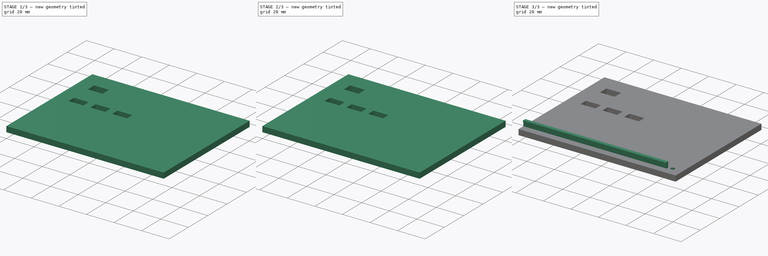
[diagram: build sequence overview — one tinted view per stage of 3, left to right]
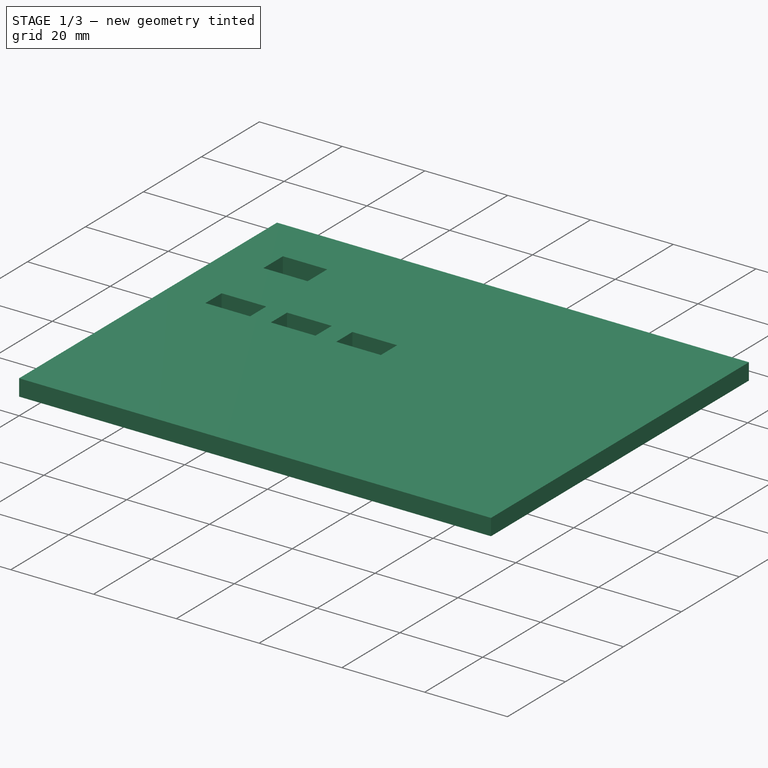
[diagram: stage 1 of 3 — iso view after this stage's code; geometry added in this stage tinted green]
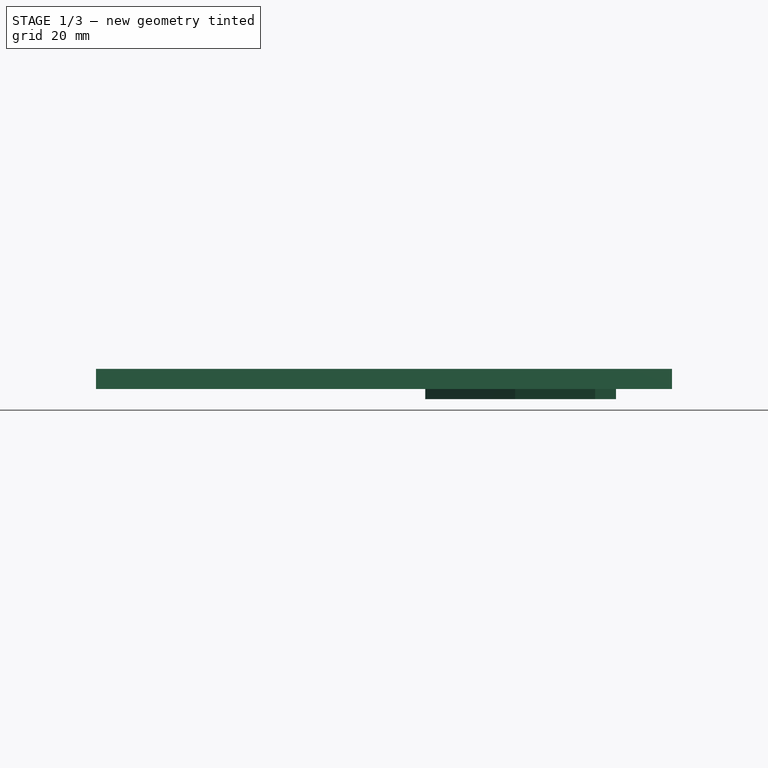
[diagram: stage 1 of 3 — front view after this stage's code; geometry added in this stage tinted green]
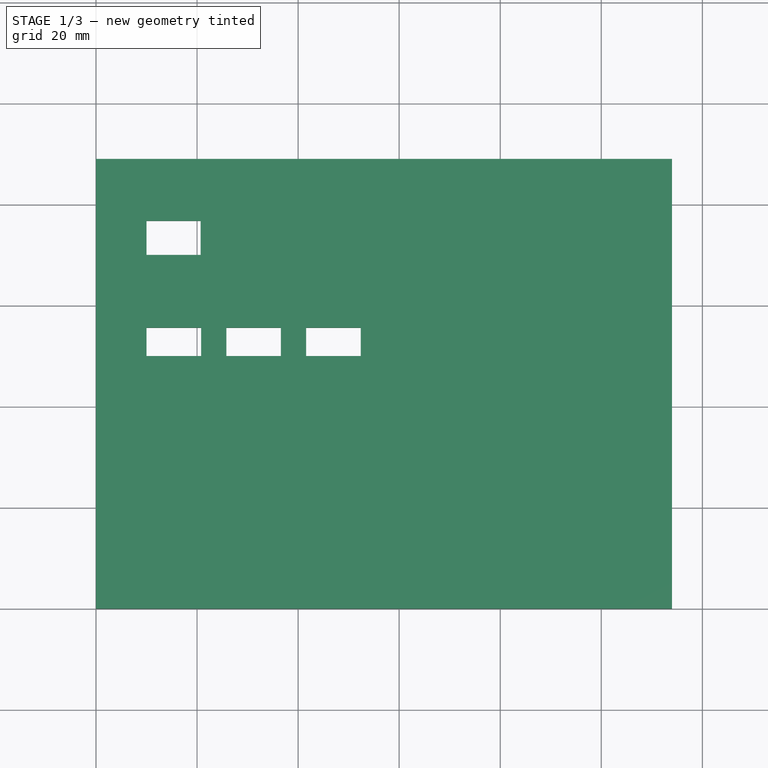
[diagram: stage 1 of 3 — top view after this stage's code; geometry added in this stage tinted green]
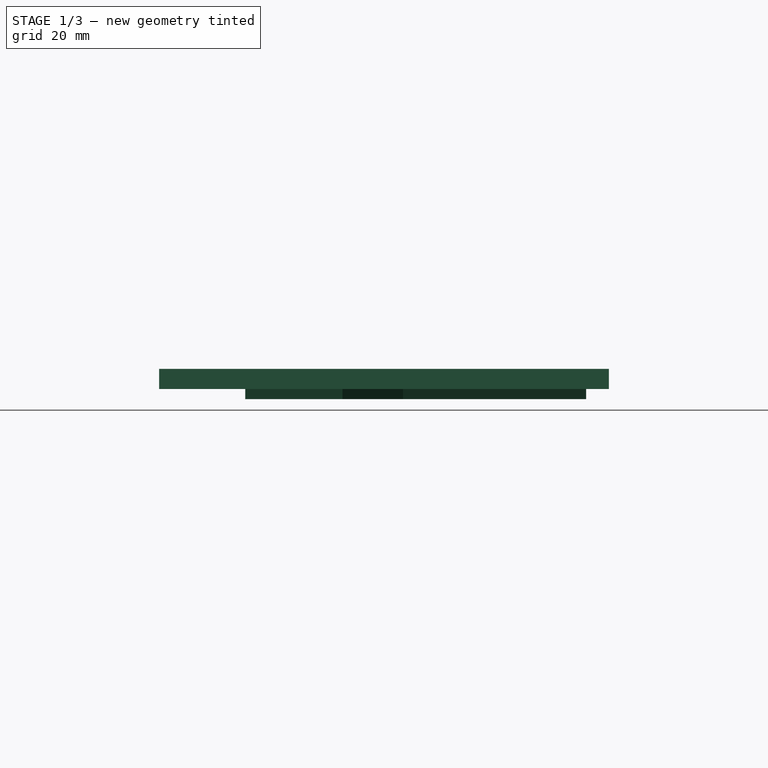
[diagram: stage 1 of 3 — right view after this stage's code; geometry added in this stage tinted green]
FCSTD DOCUMENT  (FreeCAD 1.0R38641 +468 (Git))
Label: Power-Box-Front
License: All rights reserved
LicenseURL: https://en.wikipedia.org/wiki/All_rights_reserved
objects: Sketcher::SketchObject×4, PartDesign::Pad×3, PartDesign::Fillet×1, PartDesign::Pocket×1, PartDesign::Body×1
note: 24 computed .brp shape members not serialized (recipe doc carries the construction recipe); baked Part::Feature solids carry a one-line shape summary decoded from their .brp

FEATURE [Sketcher::SketchObject] Sketch158  label="front-panel"
  ArcFitTolerance = 1e-06
  AttachmentSupport = -> [XY_Plane018]
  FullyConstrained = true
  MakeInternals = false
  MapMode = 5
  sketch-geometry (20):
    g0: LineSegment StartX=0 StartY=89 StartZ=0 EndX=0 EndY=0 EndZ=0
    g1: LineSegment StartX=0 StartY=0 StartZ=0 EndX=114 EndY=0 EndZ=0
    g2: LineSegment StartX=114 StartY=0 StartZ=0 EndX=114 EndY=89 EndZ=0
    g3: LineSegment StartX=114 StartY=89 StartZ=0 EndX=0 EndY=89 EndZ=0
    g4: LineSegment StartX=25.8 StartY=55.6 StartZ=0 EndX=25.8 EndY=50 EndZ=0
    g5: LineSegment StartX=25.8 StartY=50 StartZ=0 EndX=36.6 EndY=50 EndZ=0
    g6: LineSegment StartX=36.6 StartY=50 StartZ=0 EndX=36.6 EndY=55.6 EndZ=0
    g7: LineSegment StartX=36.6 StartY=55.6 StartZ=0 EndX=25.8 EndY=55.6 EndZ=0
    g8: LineSegment StartX=41.6 StartY=55.6 StartZ=0 EndX=41.6 EndY=50 EndZ=0
    g9: LineSegment StartX=41.6 StartY=50 StartZ=0 EndX=52.4 EndY=50 EndZ=0
    g10: LineSegment StartX=52.4 StartY=50 StartZ=0 EndX=52.4 EndY=55.6 EndZ=0
    g11: LineSegment StartX=52.4 StartY=55.6 StartZ=0 EndX=41.6 EndY=55.6 EndZ=0
    g12: LineSegment StartX=10 StartY=55.6 StartZ=0 EndX=10 EndY=50 EndZ=0
    g13: LineSegment StartX=10 StartY=50 StartZ=0 EndX=20.8 EndY=50 EndZ=0
    g14: LineSegment StartX=20.8 StartY=50 StartZ=0 EndX=20.8 EndY=55.6 EndZ=0
    g15: LineSegment StartX=20.8 StartY=55.6 StartZ=0 EndX=10 EndY=55.6 EndZ=0
    g16: LineSegment StartX=10 StartY=76.75 StartZ=0 EndX=10 EndY=70 EndZ=0
    g17: LineSegment StartX=10 StartY=70 StartZ=0 EndX=20.7 EndY=70 EndZ=0
    g18: LineSegment StartX=20.7 StartY=70 StartZ=0 EndX=20.7 EndY=76.75 EndZ=0
    g19: LineSegment StartX=20.7 StartY=76.75 StartZ=0 EndX=10 EndY=76.75 EndZ=0
  constraints (60):
    c: Coincident(g0,g1)
    c: Coincident(g1,g2)
    c: Coincident(g2,g3)
    c: Coincident(g3,g0)
    c: Vertical(g0)
    c: Vertical(g2)
    c: Horizontal(g1)
    c: Horizontal(g3)
    c: Distance(g0,g2) = 114
    c: Distance(g1,g3) = 89
    c: DistanceY(g-1,g0) = 0
    c: DistanceX(g-1,g0) = 0
    c: Coincident(g4,g5)
    c: Coincident(g5,g6)
    c: Coincident(g6,g7)
    c: Coincident(g7,g4)
    c: Vertical(g4)
    c: Vertical(g6)
    c: Horizontal(g5)
    c: Horizontal(g7)
    c: Distance(g4,g6) = 10.8
    c: Distance(g5,g7) = 5.6
    c: Coincident(g8,g9)
    c: Coincident(g9,g10)
    c: Coincident(g10,g11)
    c: Coincident(g11,g8)
    c: Vertical(g8)
    c: Vertical(g10)
    c: Horizontal(g9)
    c: Horizontal(g11)
    c: Distance(g8,g10) = 10.8
    c: Distance(g9,g11) = 5.6
    c: Coincident(g12,g13)
    c: Coincident(g13,g14)
    c: Coincident(g14,g15)
    c: Coincident(g15,g12)
    c: Vertical(g12)
    c: Vertical(g14)
    c: Horizontal(g13)
    c: Horizontal(g15)
    c: Distance(g12,g14) = 10.8
    c: Distance(g13,g15) = 5.6
    c: DistanceX(g0,g12) = 10
    c: DistanceX(g14,g4) = 5
    c: DistanceX(g6,g8) = 5
    c: DistanceY(g0,g12) = 50
    c: DistanceY(g13,g4) = 0
    c: DistanceY(g5,g8) = 0
    c: Coincident(g16,g17)
    c: Coincident(g17,g18)
    c: Coincident(g18,g19)
    c: Coincident(g19,g16)
    c: Vertical(g16)
    c: Vertical(g18)
    c: Horizontal(g17)
    c: Horizontal(g19)
    c: Distance(g16,g18) = 10.7
    c: Distance(g17,g19) = 6.75
    c: DistanceY(g0,g16) = 70
    c: DistanceX(g0,g16) = 10
FEATURE [Sketcher::SketchObject] Sketch159  label="front-sign"
  ArcFitTolerance = 1e-06
  FullyConstrained = false
  MakeInternals = false
  MapMode = 5
  Placement = pos=(0,0,0) rot=(1,0,0;3.14159rad)
  sketch-geometry (11):
    g0: LineSegment StartX=70.9991 StartY=-84.5074 StartZ=0 EndX=85.9991 EndY=-84.5074 EndZ=0
    g1: LineSegment StartX=85.9991 StartY=-84.5074 StartZ=0 EndX=102.904 EndY=-48.2551 EndZ=0
    g2: LineSegment StartX=70.9991 StartY=-84.5074 StartZ=0 EndX=92.2214 EndY=-54.1988 EndZ=0
    g3: LineSegment StartX=102.904 StartY=-48.2551 StartZ=0 EndX=76.8239 EndY=-55.2432 EndZ=0
    g4: LineSegment StartX=76.8239 StartY=-55.2432 StartZ=0 EndX=91.2449 EndY=-31.2425 EndZ=0
    g5: LineSegment StartX=91.2449 StartY=-31.2425 StartZ=0 EndX=92.4737 EndY=-36.2803 EndZ=0
    g6: LineSegment StartX=92.4737 StartY=-36.2803 StartZ=0 EndX=98.7881 EndY=-17.0509 EndZ=0
    g7: LineSegment StartX=98.7881 StartY=-17.0509 StartZ=0 EndX=82.9604 EndY=-29.5321 EndZ=0
    g8: LineSegment StartX=82.9604 StartY=-29.5321 StartZ=0 EndX=88.6869 EndY=-29.085 EndZ=0
    g9: LineSegment StartX=92.2214 StartY=-54.1988 StartZ=0 EndX=65.1755 EndY=-61.4457 EndZ=0
    g10: LineSegment StartX=65.1755 StartY=-61.4457 StartZ=0 EndX=88.6869 EndY=-29.085 EndZ=0
  constraints (12):
    c: Horizontal(g0)
    c: Coincident(g1,g0)
    c: Coincident(g2,g0)
    c: Coincident(g9,g2)
    c: Coincident(g4,g3)
    c: Coincident(g10,g9)
    c: Coincident(g5,g4)
    c: Coincident(g6,g5)
    c: Coincident(g7,g6)
    c: Coincident(g8,g10)
    c: Coincident(g1,g3)
    c: Coincident(g7,g8)
FEATURE [PartDesign::Pad] Pad
  Direction = (0,0,1)
  Length = 4
  Length2 = 10
  Profile = -> Sketch158
  ReferenceAxis = -> Sketch158 [N_Axis]
  Refine = true
  Suppressed = false
  Type = 0
FEATURE [PartDesign::Pad] Pad001
  BaseFeature = -> Pad
  Direction = (0,0,-1)
  Length = 2
  Length2 = 10
  Profile = -> Sketch159
  ReferenceAxis = -> Sketch159 [N_Axis]
  Refine = true
  Suppressed = false
  Type = 0
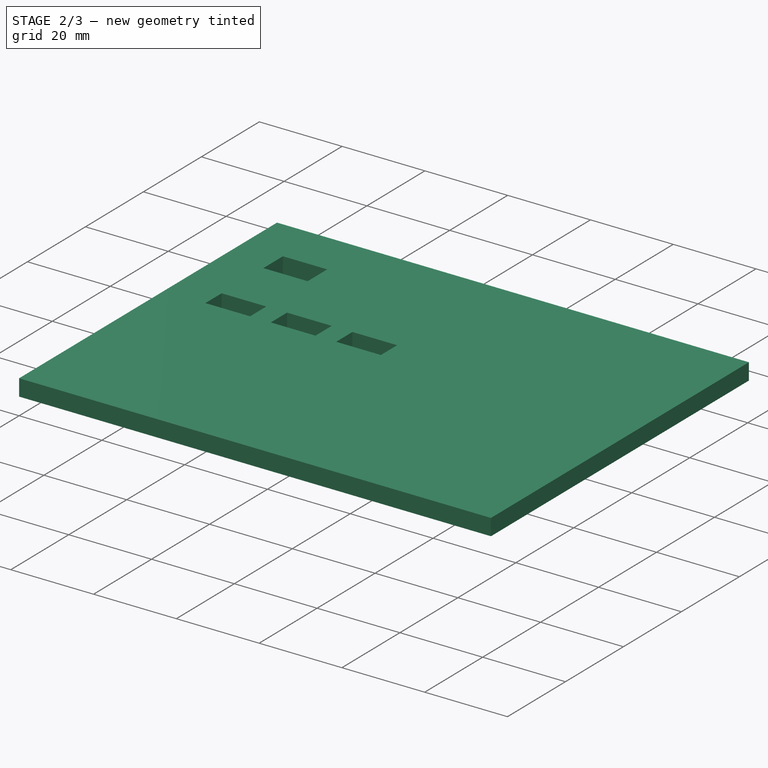
[diagram: stage 2 of 3 — iso view after this stage's code; geometry added in this stage tinted green]
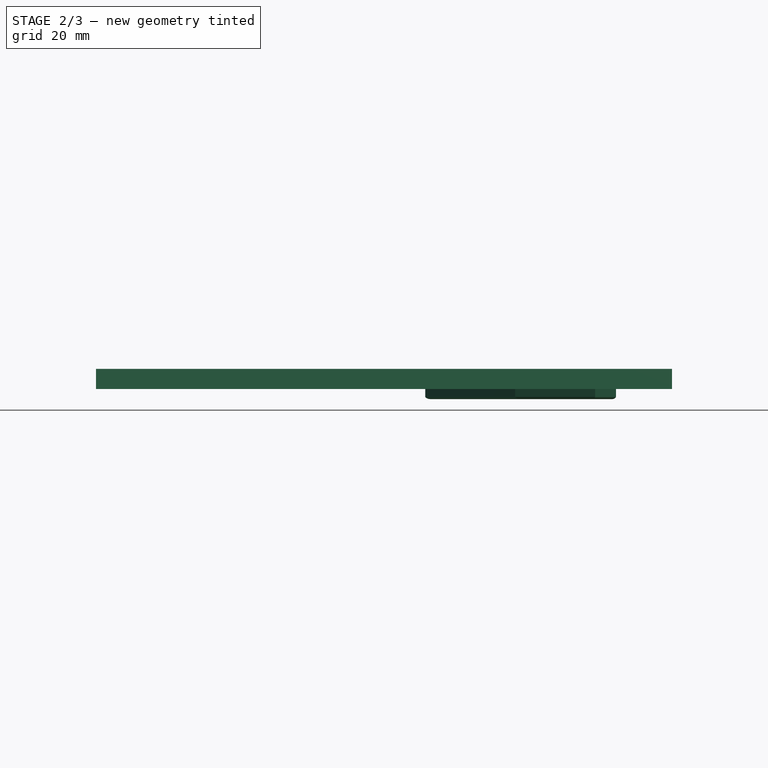
[diagram: stage 2 of 3 — front view after this stage's code; geometry added in this stage tinted green]
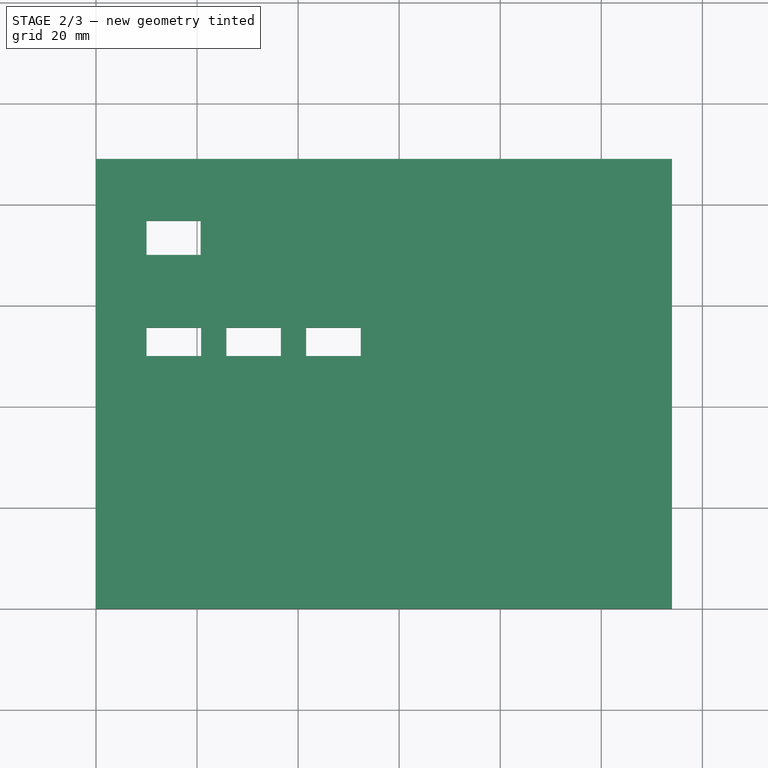
[diagram: stage 2 of 3 — top view after this stage's code; geometry added in this stage tinted green]
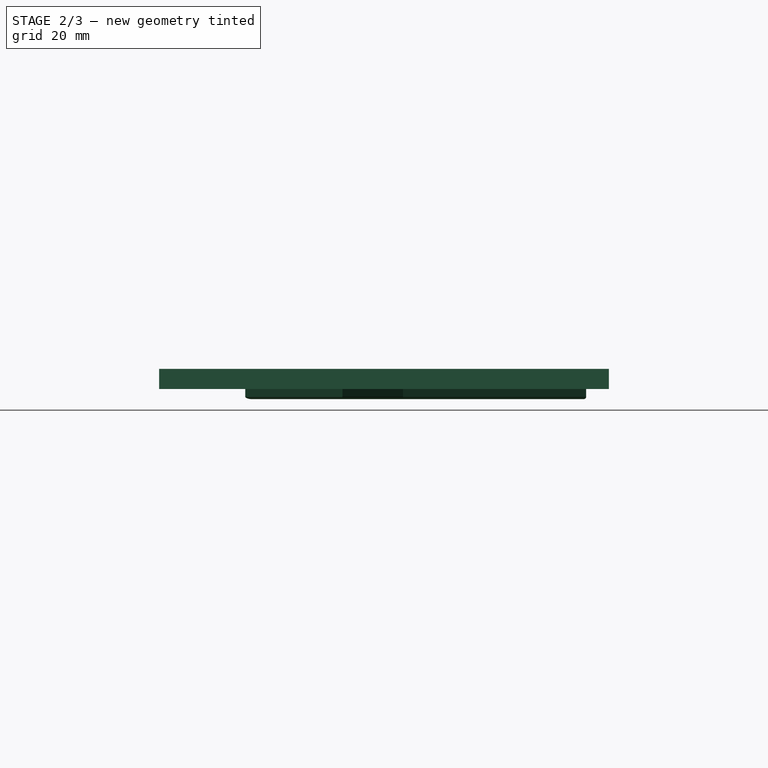
[diagram: stage 2 of 3 — right view after this stage's code; geometry added in this stage tinted green]
FEATURE [Sketcher::SketchObject] Sketch160  label="trail-bottom"
  ArcFitTolerance = 1e-06
  AttachmentSupport = -> [YZ_Plane018]
  FullyConstrained = true
  MakeInternals = false
  MapMode = 5
  Placement = pos=(0,0,0) rot=(0.57735,0.57735,0.57735;2.0944rad)
  sketch-geometry (8):
    g0: LineSegment StartX=5 StartY=7 StartZ=0 EndX=5 EndY=4 EndZ=0
    g1: LineSegment StartX=5 StartY=4 StartZ=0 EndX=6.5 EndY=4 EndZ=0
    g2: LineSegment StartX=6.5 StartY=4 StartZ=0 EndX=6.5 EndY=7 EndZ=0
    g3: LineSegment StartX=6.5 StartY=7 StartZ=0 EndX=5 EndY=7 EndZ=0
    g4: LineSegment StartX=4.5 StartY=7.9 StartZ=0 EndX=4.5 EndY=7 EndZ=0
    g5: LineSegment StartX=4.5 StartY=7 StartZ=0 EndX=7 EndY=7 EndZ=0
    g6: LineSegment StartX=7 StartY=7 StartZ=0 EndX=7 EndY=7.9 EndZ=0
    g7: LineSegment StartX=7 StartY=7.9 StartZ=0 EndX=4.5 EndY=7.9 EndZ=0
  constraints (24):
    c: Coincident(g0,g1)
    c: Coincident(g1,g2)
    c: Coincident(g2,g3)
    c: Coincident(g3,g0)
    c: Vertical(g0)
    c: Vertical(g2)
    c: Horizontal(g1)
    c: Horizontal(g3)
    c: Distance(g0,g2) = 1.5
    c: Distance(g1,g3) = 3
    c: Coincident(g4,g5)
    c: Coincident(g5,g6)
    c: Coincident(g6,g7)
    c: Coincident(g7,g4)
    c: Vertical(g4)
    c: Vertical(g6)
    c: Horizontal(g5)
    c: Horizontal(g7)
    c: Distance(g4,g6) = 2.5
    c: Distance(g5,g7) = 0.9
    c: DistanceX(g4,g0) = 0.5
    c: DistanceY(g2,g5) = 0
    c: DistanceX(g-1,g0) = 5
    c: DistanceY(g-1,g0) = 4
FEATURE [PartDesign::Fillet] Fillet
  Base = -> Pad001 [Edge92,Edge93,Edge74,Edge76,Edge90,Edge88,Edge86,Edge84,Edge82,Edge80,Edge78]
  BaseFeature = -> Pad001
  Radius = 0.5
  Refine = true
  SupportTransform = false
  Suppressed = false
  UseAllEdges = false
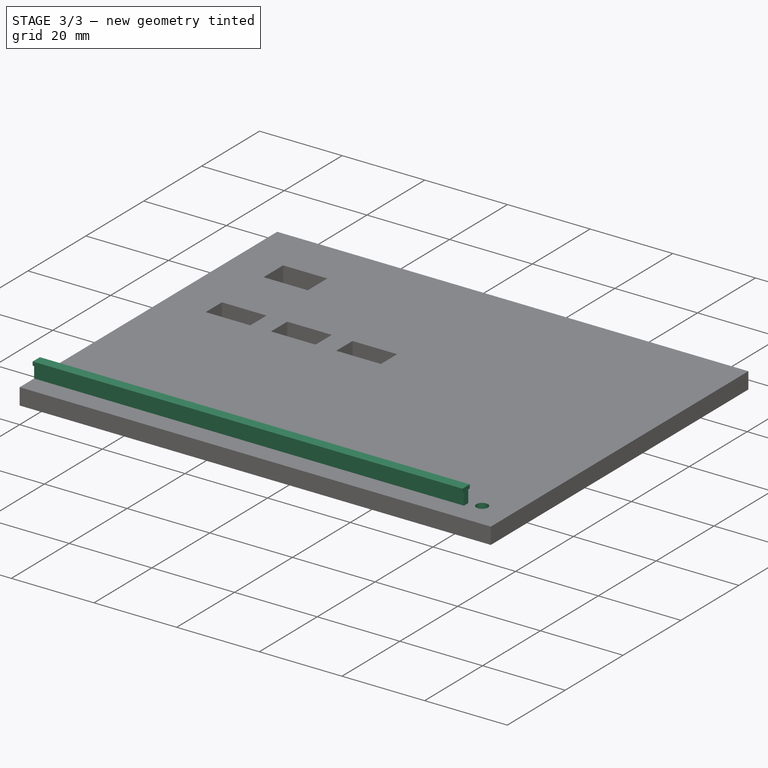
[diagram: stage 3 of 3 — iso view after this stage's code; geometry added in this stage tinted green]
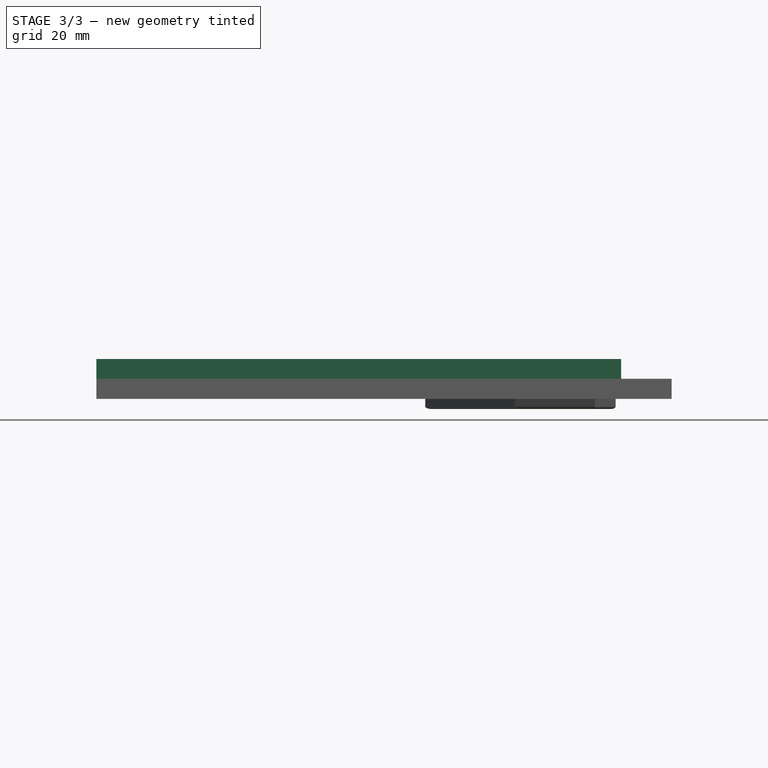
[diagram: stage 3 of 3 — front view after this stage's code; geometry added in this stage tinted green]
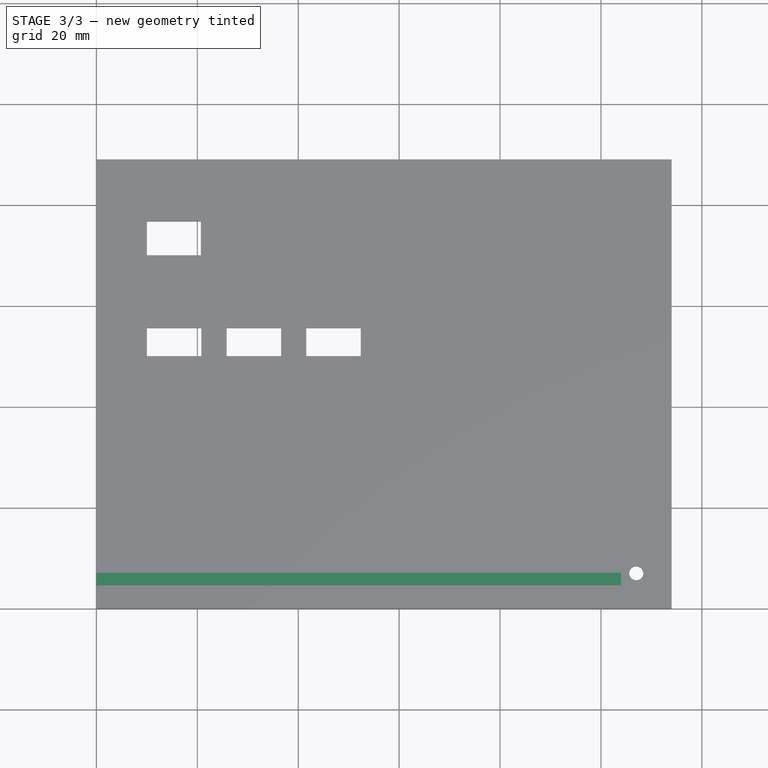
[diagram: stage 3 of 3 — top view after this stage's code; geometry added in this stage tinted green]
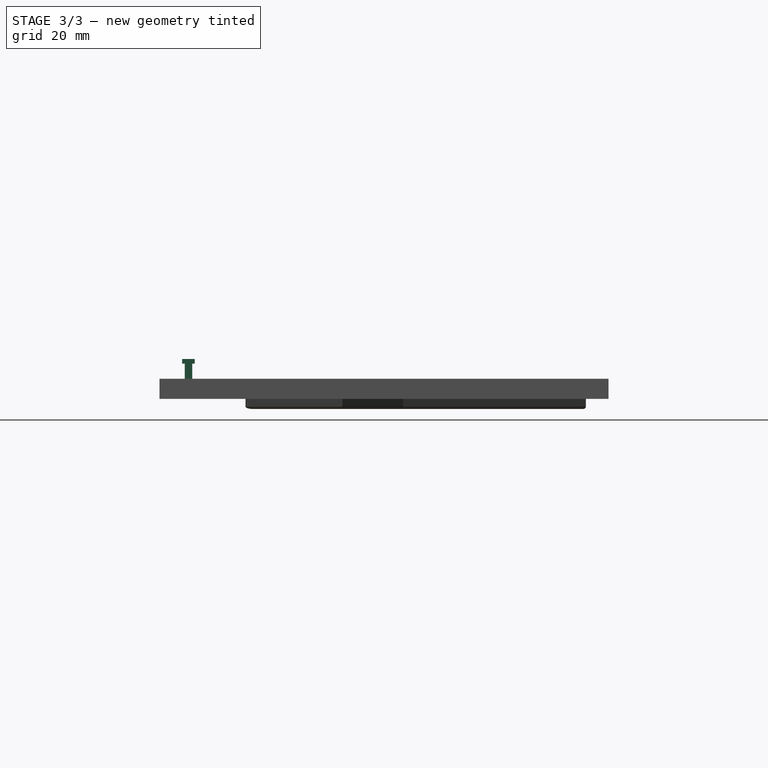
[diagram: stage 3 of 3 — right view after this stage's code; geometry added in this stage tinted green]
FEATURE [PartDesign::Pad] Pad003
  BaseFeature = -> Fillet
  Direction = (1,0,0)
  Length = 104
  Length2 = 10
  Profile = -> Sketch160
  ReferenceAxis = -> Sketch160 [N_Axis]
  Refine = true
  Suppressed = false
  Type = 0
FEATURE [Sketcher::SketchObject] Sketch161
  ArcFitTolerance = 1e-06
  AttachmentSupport = -> [XY_Plane018]
  FullyConstrained = true
  MakeInternals = false
  MapMode = 5
  sketch-geometry (1):
    g0: Circle CenterX=107 CenterY=7 CenterZ=0 NormalX=0 NormalY=0 NormalZ=1 AngleXU=0 Radius=1.4
  constraints (3):
    c: Diameter(g0) = 2.8
    c: DistanceX(g-1,g0) = 107
    c: DistanceY(g-1,g0) = 7
FEATURE [PartDesign::Pocket] Pocket
  BaseFeature = -> Pad003
  Direction = (0,0,-1)
  Length = 5
  Length2 = 5
  Profile = -> Sketch161
  ReferenceAxis = -> Sketch161 [N_Axis]
  Refine = true
  Reversed = true
  Suppressed = false
  Type = 0
FEATURE [PartDesign::Body] Body018  label="Power-Box-Front"
  AllowCompound = false
  Group = -> [Sketch158,Sketch159,Pad,Pad001,Sketch160,Fillet,Pad003,Sketch161,Pocket]
  Origin = -> Origin018
  Tip = -> Pocket
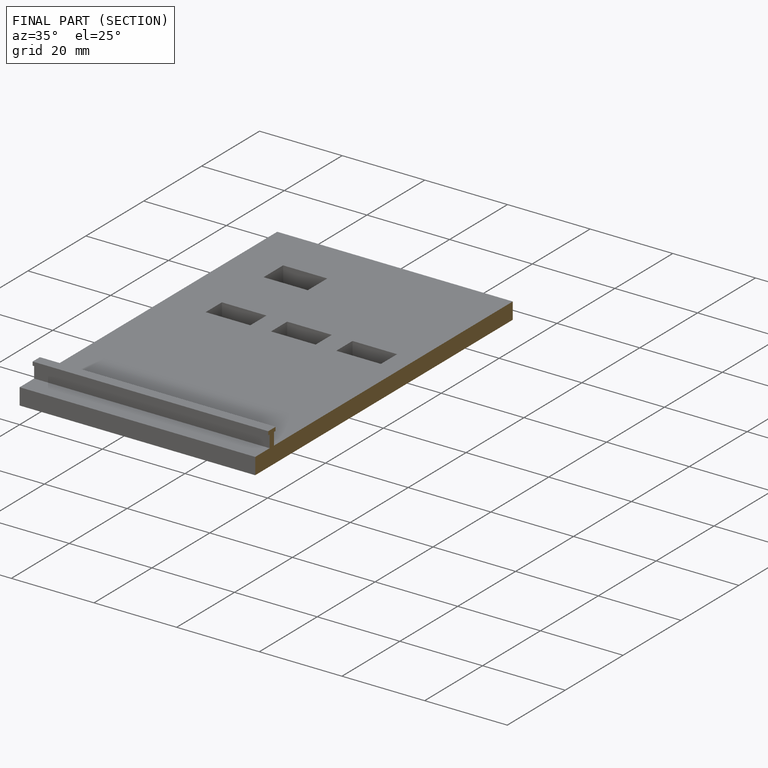
[diagram: finished part — half-section view (interior)]
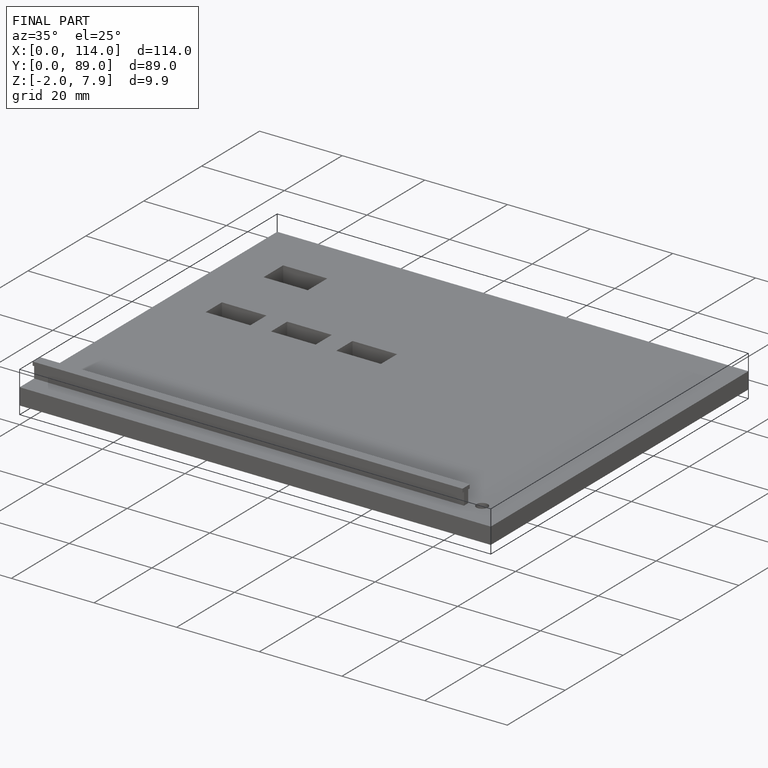
[diagram: finished part — iso view with bounding-box wireframe]
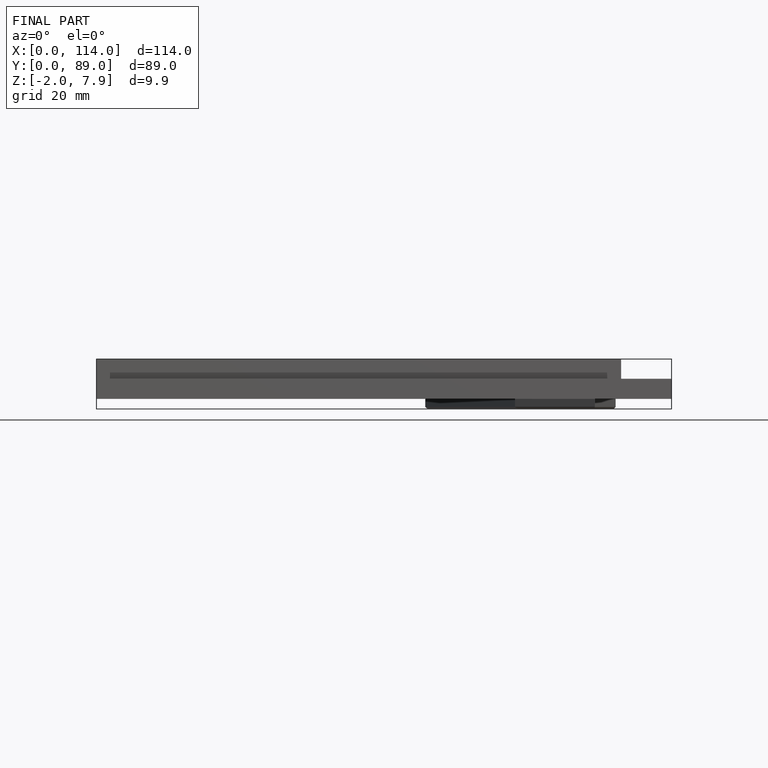
[diagram: finished part — front view with bounding-box wireframe]
